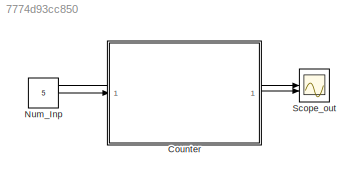
MODEL slx_7774d93cc850
KIND model
CONFIG AbsTol = auto
CONFIG EnableMultiTasking = off
CONFIG FixedStep = auto
CONFIG MaxStep = auto
CONFIG MinStep = auto
CONFIG RelTol = 1e-3
CONFIG SampleTimeConstraint = Unconstrained
CONFIG SolverName = VariableStepAuto
CONFIG StartTime = 0.0
CONFIG StopTime = 10.0
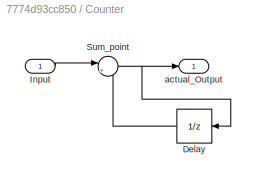
BLOCK [SubSystem] Counter
BLOCK [UnitDelay] Counter/Delay
  HasFrameUpgradeWarning = on
  SampleTime = -1
BLOCK [Inport] Counter/Input
BLOCK [Sum] Counter/Sum_point
  Inputs = |++
BLOCK [Outport] Counter/actual_Output
BLOCK [Constant] Num_Inp
  Value = 5
BLOCK [Scope] Scope_out
  Floating = off
  NumInputPorts = 2
LINE Counter/Delay:1 -> Counter/Sum_point:2
LINE Counter/Input:1 -> Counter/Sum_point:1
NET Counter/Sum_point:1 -> Counter/Delay:1, Counter/actual_Output:1
LINE Counter:1 -> Scope_out:2
NET Num_Inp:1 -> Counter:1, Scope_out:1
note: NET lines group one-source signal fan-out (src -> all destinations, sorted); 1:1 wires keep LINE
